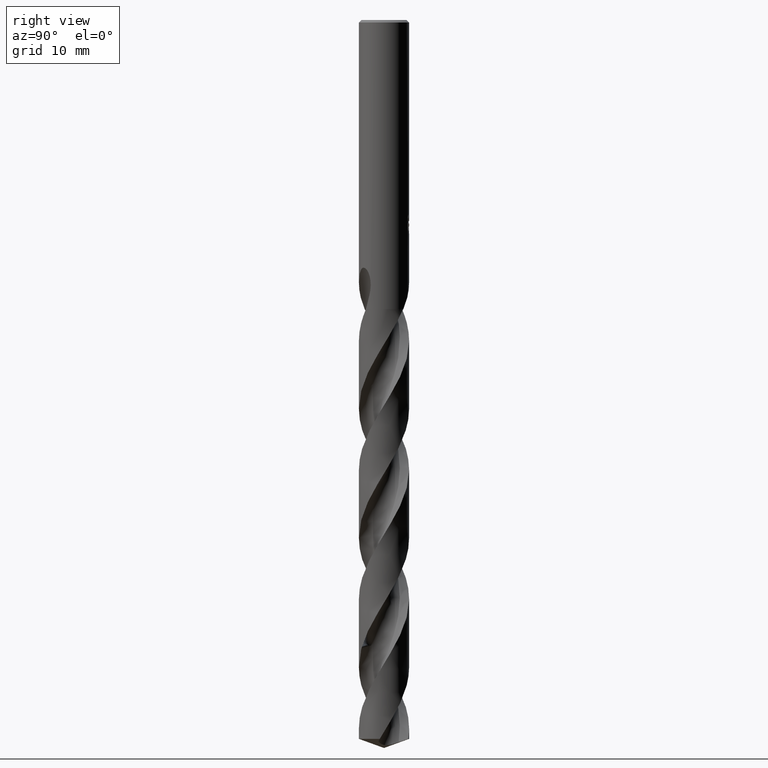
[diagram: clean part render]
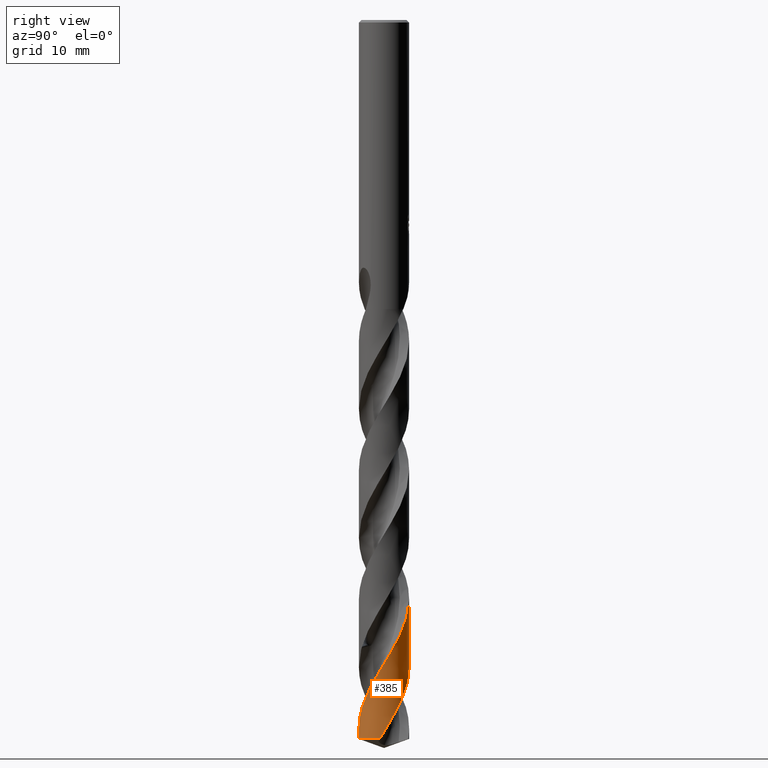
[diagram: same view with one face highlighted and labeled with its STEP entity id]
A machine part, right view. The second image highlights one B-rep face of the part: STEP entity #385.
In plain terms, the highlighted conical surface has half-angle 0 deg.
Its self-contained STEP definition (entity closure, byte-faithful):
#341=EDGE_CURVE('',#641,#435,#849,.T.);
#385=ADVANCED_FACE('',(#898),#899,.T.);
#389=VERTEX_POINT('',#903);
#397=EDGE_CURVE('',#593,#435,#912,.T.);
#435=VERTEX_POINT('',#951);
#443=VERTEX_POINT('',#960);
#501=EDGE_CURVE('',#389,#443,#1024,.T.);
#593=VERTEX_POINT('',#1126);
#595=EDGE_CURVE('',#389,#641,#1128,.T.);
#641=VERTEX_POINT('',#1177);
#741=EDGE_CURVE('',#593,#443,#1283,.T.);
#849=LINE('',#2290,#2291);
#898=FACE_OUTER_BOUND('',#3539,.T.);
#899=CONICAL_SURFACE('',#3540,3.99995,1.45993672879858E-006);
#903=CARTESIAN_POINT('',(3.94181423967638,-0.679779743655648,-114.544119062935));
#912=B_SPLINE_CURVE_WITH_KNOTS('',3,(#3574,#3575,#3576,#3577,#3578,#3579,#3580,#3581,#3582,#3583,#3584,#3585,#3586,#3587,#3588,#3589,#3590,#3591,#3592,#3593,#3594,#3595,#3596,#3597,#3598,#3599,#3600,#3601,#3602,#3603,#3604,#3605,#3606,#3607,#3608,#3609,#3610,#3611,#3612,#3613,#3614,#3615,#3616,#3617,#3618,#3619,#3620,#3621,#3622,#3623,#3624,#3625,#3626,#3627,#3628,#3629,#3630,#3631,#3632,#3633,#3634,#3635,#3636,#3637,#3638,#3639,#3640,#3641,#3642,#3643,#3644,#3645,#3646,#3647,#3648,#3649,#3650,#3651,#3652,#3653,#3654,#3655,#3656,#3657,#3658,#3659,#3660,#3661,#3662,#3663,#3664,#3665,#3666,#3667,#3668,#3669,#3670,#3671,#3672,#3673,#3674,#3675,#3676,#3677,#3678,#3679,#3680,#3681,#3682,#3683,#3684,#3685,#3686,#3687,#3688,#3689,#3690,#3691,#3692,#3693,#3694,#3695,#3696,#3697,#3698,#3699,#3700,#3701,#3702,#3703,#3704,#3705,#3706,#3707,#3708,#3709,#3710,#3711,#3712,#3713,#3714,#3715,#3716,#3717,#3718,#3719,#3720,#3721,#3722,#3723,#3724,#3725),.UNSPECIFIED.,.F.,.F.,(4,2,2,2,2,2,2,2,2,2,2,2,2,2,2,2,2,2,2,2,2,2,2,2,2,2,2,2,2,2,2,2,2,2,2,2,2,2,2,2,2,2,2,2,2,2,2,2,2,2,2,2,2,2,2,2,2,2,2,2,2,2,2,2,2,2,2,2,2,2,2,2,2,2,2,4),(0.0,0.201648680910562,0.287811426977105,0.331356370680635,0.849612833416693,0.96709928681127,1.03060420960451,1.08348108881563,1.14564423244048,1.25699827106449,1.36462092048607,2.11389655309662,2.65642042289018,3.50122269746394,4.08085451110219,4.58037232287383,5.54840416916192,7.32737871171083,8.04855335640123,9.820875352631,10.4871042300679,12.0575058231776,12.9970904189812,14.5928599305681,16.0570722308306,17.4439627946134,17.7710679249299,18.9897692042285,19.6937376999375,20.5177067146236,22.0771109471635,23.0283218299482,24.5869743429684,25.5369896427948,27.0799562072001,28.0594547469285,29.630551078119,30.5597004391673,32.116324866356,33.0696758518333,34.6150948330812,35.5881084861239,37.1500985002429,38.0937637818032,39.6554546501379,40.5991864032354,42.1473767359173,43.113828686456,44.6658956189253,45.625896068901,47.192044121099,48.1272377215903,49.6795036474803,50.6374337485932,52.1817309570522,53.1546335465592,54.722487803201,55.6536234927395,57.2089526434822,58.1607260021944,59.7039563507098,60.6772383545002,62.2387695626353,63.1795197588421,64.7396931253117,65.6824596933156,67.2261387534484,68.1962181152585,69.7544550357678,70.7037875373406,72.2579854138225,73.8280820020411,75.0296064375587,75.4798729600722,77.061151090249,78.6534008869028),.UNSPECIFIED.);
#951=CARTESIAN_POINT('',(-1.63623774489834E-013,-3.99999755054086,-112.866334606679));
#960=CARTESIAN_POINT('',(2.64188243777976E-015,3.99998333402808,-103.128575092219));
#1024=B_SPLINE_CURVE_WITH_KNOTS('',3,(#5053,#5054,#5055,#5056,#5057,#5058,#5059,#5060,#5061,#5062,#5063,#5064,#5065,#5066,#5067,#5068,#5069,#5070,#5071,#5072,#5073,#5074,#5075,#5076,#5077,#5078,#5079,#5080,#5081,#5082,#5083,#5084,#5085,#5086,#5087,#5088,#5089,#5090,#5091,#5092,#5093,#5094,#5095,#5096,#5097,#5098,#5099,#5100,#5101,#5102,#5103,#5104,#5105,#5106,#5107,#5108,#5109,#5110,#5111,#5112,#5113,#5114,#5115,#5116,#5117,#5118,#5119,#5120,#5121,#5122,#5123,#5124,#5125,#5126,#5127,#5128,#5129,#5130,#5131,#5132,#5133,#5134,#5135,#5136,#5137,#5138,#5139,#5140,#5141,#5142,#5143,#5144,#5145,#5146,#5147,#5148,#5149,#5150,#5151,#5152,#5153,#5154,#5155,#5156,#5157,#5158,#5159,#5160,#5161,#5162,#5163,#5164,#5165,#5166,#5167,#5168,#5169,#5170,#5171,#5172,#5173,#5174,#5175,#5176,#5177,#5178,#5179,#5180,#5181,#5182,#5183,#5184,#5185,#5186,#5187,#5188,#5189,#5190,#5191,#5192,#5193,#5194,#5195,#5196,#5197,#5198,#5199,#5200,#5201,#5202,#5203,#5204,#5205,#5206,#5207,#5208,#5209,#5210),.UNSPECIFIED.,.F.,.F.,(4,2,2,2,2,2,2,2,2,2,2,2,2,2,2,2,2,2,2,2,2,2,2,2,2,2,2,2,2,2,2,2,2,2,2,2,2,2,2,2,2,2,2,2,2,2,2,2,2,2,2,2,2,2,2,2,2,2,2,2,2,2,2,2,2,2,2,2,2,2,2,2,2,2,2,2,2,2,4),(0.0,1.79459234819068,2.93895174529985,3.86671599924228,5.12402296856714,7.18297093424794,7.89916034547965,9.04476723867697,11.101163384525,11.1689689721968,13.3625905864738,13.940408593114,16.2332317621778,16.3008722793936,18.4838456647748,19.0613552891118,21.3351480890928,21.4048268683665,23.6265614496789,24.1923470115375,25.3958197471264,26.0328909463757,26.965038806506,28.0345129098138,30.1836953339023,31.456884455771,31.789389907757,32.9663447783547,33.602672463154,34.8508739627384,36.1142480369493,37.3644196665228,38.6269764431657,39.8218549052023,41.082597027151,42.2130796790284,43.5132701236655,44.6454634974151,45.9539708855015,46.5258361267992,47.1036745510522,48.2866950600797,48.9247776163315,50.1737792710916,51.3217094385519,52.4729415475631,53.66102942725,54.2307383452441,55.0274738428318,56.2161586459697,56.7730414217658,57.3336644448961,58.6025667849013,60.8036999796268,61.4415183170011,62.5740494952022,63.792187525432,64.3664802842036,64.9586489454991,66.1862853237352,66.82535028472,68.0742959588995,69.3446292606046,70.5942500741416,71.8812544360416,73.0188729231279,74.6185180079127,75.2510173550977,76.7777357363613,77.8594428186123,78.2649732798924,78.6402931708846,78.7685648583854,78.8644451263404,78.9120610835988,78.9638336052134,79.0469825356917,79.2640382653908,79.599674973296),.UNSPECIFIED.);
#1126=CARTESIAN_POINT('',(1.50763812835549E-014,3.99996749263698,-92.2778369871342));
#1128=CIRCLE('',#6533,4.0);
#1177=CARTESIAN_POINT('',(4.9028818964109E-016,-4.0,-114.544119062935));
#1283=LINE('',#8444,#8445);
#2290=CARTESIAN_POINT('',(4.90282066609321E-016,-3.99995,-80.2960595314676));
#2291=VECTOR('',#8595,1.0);
#3539=EDGE_LOOP('',(#8665,#8666,#8667,#8668,#8669));
#3540=AXIS2_PLACEMENT_3D('',#8670,#8671,#8672);
#3574=CARTESIAN_POINT('',(-2.78023865558487,2.87566915454258,-46.053));
#3575=CARTESIAN_POINT('',(-2.7563098981248,2.89880394297298,-46.1113970658407));
#3576=CARTESIAN_POINT('',(-2.73200109799238,2.9217293967338,-46.1698914532695));
#3577=CARTESIAN_POINT('',(-2.69666250518793,2.95422075666971,-46.2532994963048));
#3578=CARTESIAN_POINT('',(-2.68601086747219,2.96390908766562,-46.2782373603717));
#3579=CARTESIAN_POINT('',(-2.66984126147798,2.97845666332183,-46.3157646953035));
#3580=CARTESIAN_POINT('',(-2.66439255685538,2.98333190030783,-46.3283549860326));
#3581=CARTESIAN_POINT('',(-2.59380153776348,3.04614458586745,-46.4907340967934));
#3582=CARTESIAN_POINT('',(-2.52743035386121,3.10152512151207,-46.6352134834316));
#3583=CARTESIAN_POINT('',(-2.43999618668549,3.16954992059861,-46.8157492137247));
#3584=CARTESIAN_POINT('',(-2.42369959152642,3.1820299270911,-46.8490234498112));
#3585=CARTESIAN_POINT('',(-2.39834205738791,3.20113877471594,-46.9002784548283));
#3586=CARTESIAN_POINT('',(-2.3894050830121,3.20781520369717,-46.9182451955431));
#3587=CARTESIAN_POINT('',(-2.37294831301988,3.22000208465379,-46.9511642012755));
#3588=CARTESIAN_POINT('',(-2.36544509043461,3.22551812518473,-46.9661108725519));
#3589=CARTESIAN_POINT('',(-2.34906074095586,3.23747507744598,-46.9986236219532));
#3590=CARTESIAN_POINT('',(-2.34017338720429,3.2439051170703,-47.0161800986025));
#3591=CARTESIAN_POINT('',(-2.31526710384572,3.26176900253146,-47.0651822084957));
#3592=CARTESIAN_POINT('',(-2.29918799286348,3.27312311197046,-47.0965892018639));
#3593=CARTESIAN_POINT('',(-2.2673788516277,3.29523422914741,-47.1583751695536));
#3594=CARTESIAN_POINT('',(-2.2517426820216,3.30594067312102,-47.1886334216889));
#3595=CARTESIAN_POINT('',(-2.1238042328228,3.3921781816829,-47.4357273501845));
#3596=CARTESIAN_POINT('',(-2.00897775841912,3.46134288275975,-47.653598202311));
#3597=CARTESIAN_POINT('',(-1.80707045691906,3.56973136152623,-48.0284983633305));
#3598=CARTESIAN_POINT('',(-1.72076665857966,3.61211826287962,-48.1862908519146));
#3599=CARTESIAN_POINT('',(-1.49673093547335,3.71232561498695,-48.5895341593796));
#3600=CARTESIAN_POINT('',(-1.3568579854709,3.76571193928374,-48.8353925780195));
#3601=CARTESIAN_POINT('',(-1.11631773582508,3.84234631647531,-49.2492596529461));
#3602=CARTESIAN_POINT('',(-1.01726896546225,3.86975235782883,-49.4171352333163));
#3603=CARTESIAN_POINT('',(-0.830868727397968,3.91366295517378,-49.7302732321554));
#3604=CARTESIAN_POINT('',(-0.743966812218156,3.93110728021812,-49.8751327234005));
#3605=CARTESIAN_POINT('',(-0.487255921888526,3.97382674475737,-50.3010884706935));
#3606=CARTESIAN_POINT('',(-0.316459456438436,3.99104661102733,-50.5823926708425));
#3607=CARTESIAN_POINT('',(0.169346483493759,4.00870233407853,-51.3799491319812));
#3608=CARTESIAN_POINT('',(0.484346035507209,3.9829642039484,-51.8931251164586));
#3609=CARTESIAN_POINT('',(0.918472793372184,3.89512615333973,-52.6186106652792));
#3610=CARTESIAN_POINT('',(1.04235728716406,3.86381494094193,-52.8278281859163));
#3611=CARTESIAN_POINT('',(1.46460774597921,3.73532177230489,-53.5515903109263));
#3612=CARTESIAN_POINT('',(1.75313101196373,3.60894366627663,-54.0642488688803));
#3613=CARTESIAN_POINT('',(2.12587133972294,3.39026734737128,-54.7717523060999));
#3614=CARTESIAN_POINT('',(2.22496890031046,3.32606934483765,-54.9649007108604));
#3615=CARTESIAN_POINT('',(2.5475472957798,3.09623235340965,-55.6140516244887));
#3616=CARTESIAN_POINT('',(2.75667012209348,2.91161863733212,-56.0689228390768));
#3617=CARTESIAN_POINT('',(3.05764419277242,2.58415510708721,-56.797288402399));
#3618=CARTESIAN_POINT('',(3.16250745907308,2.45470204993529,-57.0694872751126));
#3619=CARTESIAN_POINT('',(3.4228321272421,2.08888006104937,-57.8054340957943));
#3620=CARTESIAN_POINT('',(3.56188560707856,1.84181824791076,-58.2676287338591));
#3621=CARTESIAN_POINT('',(3.77638147699009,1.34373844496946,-59.1556645354082));
#3622=CARTESIAN_POINT('',(3.8555460078659,1.09606602081733,-59.5796773918941));
#3623=CARTESIAN_POINT('',(3.96190665471623,0.602484214639576,-60.4073355119459));
#3624=CARTESIAN_POINT('',(3.9914408513891,0.35803833495365,-60.8089018967167));
#3625=CARTESIAN_POINT('',(3.99997273239812,0.0543812987866399,-61.3063032941222));
#3626=CARTESIAN_POINT('',(4.00034064395459,-0.00358383945677545,-61.4011917791007));
#3627=CARTESIAN_POINT('',(3.99612813143612,-0.277430632549005,-61.8498932921036));
#3628=CARTESIAN_POINT('',(3.9753293966394,-0.492709503656422,-62.2034940190717));
#3629=CARTESIAN_POINT('',(3.91527265742587,-0.828003620184909,-62.7616493682142));
#3630=CARTESIAN_POINT('',(3.88754845324938,-0.949702369442257,-62.9658578306068));
#3631=CARTESIAN_POINT('',(3.81510516315301,-1.21066344251704,-63.4093382117413));
#3632=CARTESIAN_POINT('',(3.76837571159685,-1.34909368868872,-63.6481800149148));
#3633=CARTESIAN_POINT('',(3.61167489028104,-1.74112687508385,-64.3401696870321));
#3634=CARTESIAN_POINT('',(3.48281258950805,-1.98641506176009,-64.7920272569123));
#3635=CARTESIAN_POINT('',(3.23620183428423,-2.35687410121811,-65.5208184078097));
#3636=CARTESIAN_POINT('',(3.13401867182713,-2.49113533979436,-65.7964496666228));
#3637=CARTESIAN_POINT('',(2.842935230474,-2.82726126885647,-66.5252354850146));
#3638=CARTESIAN_POINT('',(2.64097022426503,-3.01679847947039,-66.9769183129012));
#3639=CARTESIAN_POINT('',(2.28694766009582,-3.28598364167706,-67.7052151490317));
#3640=CARTESIAN_POINT('',(2.14662525228815,-3.37931770215702,-67.98052462259));
#3641=CARTESIAN_POINT('',(1.76416110312728,-3.60026886922332,-68.7044833234876));
#3642=CARTESIAN_POINT('',(1.51395999262016,-3.71244263392974,-69.1517037254616));
#3643=CARTESIAN_POINT('',(1.08929271784916,-3.8526714991327,-69.884088478964));
#3644=CARTESIAN_POINT('',(0.921076598277679,-3.89630885716205,-70.1679491572039));
#3645=CARTESIAN_POINT('',(0.477158470432418,-3.98111911888515,-70.9087172826476));
#3646=CARTESIAN_POINT('',(0.19890375157831,-4.00468985451695,-71.3640727995492));
#3647=CARTESIAN_POINT('',(-0.244344120451431,-3.99586585618107,-72.0900715011371));
#3648=CARTESIAN_POINT('',(-0.408647676526806,-3.98241467304618,-72.3594115710581));
#3649=CARTESIAN_POINT('',(-0.844639585381252,-3.91946370759086,-73.0814214499844));
#3650=CARTESIAN_POINT('',(-1.11295692649598,-3.85188888109846,-73.5326579068643));
#3651=CARTESIAN_POINT('',(-1.53105006171143,-3.69918873213707,-74.2615561325932));
#3652=CARTESIAN_POINT('',(-1.68595986612159,-3.63120102449577,-74.537913429033));
#3653=CARTESIAN_POINT('',(-2.07940845956725,-3.42791792170651,-75.2637722556805));
#3654=CARTESIAN_POINT('',(-2.30927882057937,-3.27748348007225,-75.7118314118828));
#3655=CARTESIAN_POINT('',(-2.65595591354371,-2.99586909436845,-76.4432648901595));
#3656=CARTESIAN_POINT('',(-2.78266937248855,-2.87855056335917,-76.7253354598028));
#3657=CARTESIAN_POINT('',(-3.09197168850174,-2.55263172243944,-77.4617981035233));
#3658=CARTESIAN_POINT('',(-3.261261494483,-2.33248841215191,-77.9146718274808));
#3659=CARTESIAN_POINT('',(-3.49420593718451,-1.95400123575484,-78.6424650202616));
#3660=CARTESIAN_POINT('',(-3.57287262016469,-1.8061417221317,-78.9160834014604));
#3661=CARTESIAN_POINT('',(-3.75649924298332,-1.40176460985067,-79.6440036813032));
#3662=CARTESIAN_POINT('',(-3.84452672727117,-1.13840059847197,-80.0968347039554));
#3663=CARTESIAN_POINT('',(-3.94096850489807,-0.704555743089847,-80.8246309978312));
#3664=CARTESIAN_POINT('',(-3.9669888320514,-0.539074970066219,-81.0982926052567));
#3665=CARTESIAN_POINT('',(-4.00813051672796,-0.0992114118301566,-81.8223808159747));
#3666=CARTESIAN_POINT('',(-4.00550333292162,0.176076749706119,-82.271371258027));
#3667=CARTESIAN_POINT('',(-3.95542789453375,0.61936925869235,-83.001923061132));
#3668=CARTESIAN_POINT('',(-3.92525583219711,0.788266323590574,-83.2821800246217));
#3669=CARTESIAN_POINT('',(-3.81868138789056,1.2219012816577,-84.0140743645262));
#3670=CARTESIAN_POINT('',(-3.72557561784181,1.48174379654734,-84.464228764843));
#3671=CARTESIAN_POINT('',(-3.53280718335573,1.88359802333004,-85.1941085784598));
#3672=CARTESIAN_POINT('',(-3.44943228290417,2.03225360912674,-85.4725330231451));
#3673=CARTESIAN_POINT('',(-3.20585234414703,2.40817406532156,-86.2067190502068));
#3674=CARTESIAN_POINT('',(-3.03091850479692,2.62496424514471,-86.660970093546));
#3675=CARTESIAN_POINT('',(-2.71779105830066,2.93952921424918,-87.3878012441066));
#3676=CARTESIAN_POINT('',(-2.59355621350046,3.04969795701198,-87.6590781777436));
#3677=CARTESIAN_POINT('',(-2.24596556137864,3.32131179154725,-88.3820886169169));
#3678=CARTESIAN_POINT('',(-2.01205539156135,3.46802748901067,-88.8323868692644));
#3679=CARTESIAN_POINT('',(-1.61229821614749,3.66457378899717,-89.5618659779577));
#3680=CARTESIAN_POINT('',(-1.45517245499964,3.72975190167012,-89.8397420900311));
#3681=CARTESIAN_POINT('',(-1.03526385187551,3.8733662180837,-90.567121199999));
#3682=CARTESIAN_POINT('',(-0.767593455042676,3.93518019463891,-91.0151736387169));
#3683=CARTESIAN_POINT('',(-0.324293207474726,3.99053650250885,-91.7467681668912));
#3684=CARTESIAN_POINT('',(-0.151810936285319,4.00080866002715,-92.0290076304816));
#3685=CARTESIAN_POINT('',(0.298846252479703,3.99847145304417,-92.767664637176));
#3686=CARTESIAN_POINT('',(0.576137884140066,3.96802993226208,-93.2225441163212));
#3687=CARTESIAN_POINT('',(1.00961758946045,3.87398339671767,-93.9489126072119));
#3688=CARTESIAN_POINT('',(1.16875076918648,3.82897742226586,-94.2190988344344));
#3689=CARTESIAN_POINT('',(1.58494840464051,3.68291108768851,-94.9420399935339));
#3690=CARTESIAN_POINT('',(1.83523440446054,3.56481690724849,-95.3933563166185));
#3691=CARTESIAN_POINT('',(2.21595978502333,3.33434442480025,-96.1221566053869));
#3692=CARTESIAN_POINT('',(2.35475577989213,3.23781187289327,-96.3983360749056));
#3693=CARTESIAN_POINT('',(2.70144044007084,2.96259615140057,-97.1238341026739));
#3694=CARTESIAN_POINT('',(2.8979099381966,2.77073636518056,-97.5717129320821));
#3695=CARTESIAN_POINT('',(3.18386488903062,2.42748229399727,-98.303328425222));
#3696=CARTESIAN_POINT('',(3.28570412103867,2.28774627526235,-98.5857612704792));
#3697=CARTESIAN_POINT('',(3.52653503251809,1.90791373085207,-99.322913726277));
#3698=CARTESIAN_POINT('',(3.65023859114353,1.65905209325348,-99.7761099297907));
#3699=CARTESIAN_POINT('',(3.80566353028948,1.24284368247267,-100.503658067244));
#3700=CARTESIAN_POINT('',(3.85421844644047,1.08291566850439,-100.77670890602));
#3701=CARTESIAN_POINT('',(3.95634137935964,0.651042341642758,-101.504076059112));
#3702=CARTESIAN_POINT('',(3.9919298617047,0.375633072926757,-101.956924425361));
#3703=CARTESIAN_POINT('',(4.00289518323126,-0.0686789291458742,-102.684734927086));
#3704=CARTESIAN_POINT('',(3.99651447230723,-0.236070588553742,-102.958392913448));
#3705=CARTESIAN_POINT('',(3.95210996101869,-0.675092280563785,-103.681621017699));
#3706=CARTESIAN_POINT('',(3.89660241769627,-0.944202701183427,-104.129762460345));
#3707=CARTESIAN_POINT('',(3.76205612713303,-1.36985347960813,-104.860796843208));
#3708=CARTESIAN_POINT('',(3.69959519014349,-1.5305322988556,-105.142385698848));
#3709=CARTESIAN_POINT('',(3.51038122430003,-1.93742314150357,-105.877870403248));
#3710=CARTESIAN_POINT('',(3.36802744829866,-2.1755193654895,-106.330256611922));
#3711=CARTESIAN_POINT('',(3.101142479855,-2.53204568712174,-107.05956701124));
#3712=CARTESIAN_POINT('',(2.99170596101547,-2.66045219573831,-107.335189630709));
#3713=CARTESIAN_POINT('',(2.68269122380472,-2.97979813893906,-108.063537297867));
#3714=CARTESIAN_POINT('',(2.47078190866998,-3.15774937454881,-108.514788987584));
#3715=CARTESIAN_POINT('',(2.01120189248781,-3.46883109589595,-109.423543577336));
#3716=CARTESIAN_POINT('',(1.76461019074902,-3.60052181877393,-109.87906526758));
#3717=CARTESIAN_POINT('',(1.30889535179805,-3.78579283038933,-110.685491110008));
#3718=CARTESIAN_POINT('',(1.10515883991553,-3.85021179677951,-111.034426987278));
#3719=CARTESIAN_POINT('',(0.81923658623124,-3.91601998735808,-111.514887268757));
#3720=CARTESIAN_POINT('',(0.740789073508896,-3.93161427848494,-111.645785572076));
#3721=CARTESIAN_POINT('',(0.385006999621851,-3.9913144154807,-112.23679305637));
#3722=CARTESIAN_POINT('',(0.103861879694929,-4.0085068877115,-112.695986263862));
#3723=CARTESIAN_POINT('',(-0.459448654496336,-3.98358276819162,-113.619109307535));
#3724=CARTESIAN_POINT('',(-0.739664525891767,-3.94114354392843,-114.080578198535));
#3725=CARTESIAN_POINT('',(-1.01281366550972,-3.86965224263844,-114.544119062935));
#5053=CARTESIAN_POINT('',(3.94181423967638,-0.679779743655652,-114.544119062935));
#5054=CARTESIAN_POINT('',(3.99491232437438,-0.371877416091599,-114.034004430184));
#5055=CARTESIAN_POINT('',(4.01165782553826,-0.0596955931241228,-113.519776261688));
#5056=CARTESIAN_POINT('',(3.97964292078451,0.449279973431634,-112.684287661054));
#5057=CARTESIAN_POINT('',(3.95243796687407,0.646250428089284,-112.36040898246));
#5058=CARTESIAN_POINT('',(3.87689420607107,0.997785617609038,-111.771409599821));
#5059=CARTESIAN_POINT('',(3.83364095526282,1.15284357151572,-111.506905315154));
#5060=CARTESIAN_POINT('',(3.7100180566079,1.51104801511944,-110.8858427353));
#5061=CARTESIAN_POINT('',(3.62211024847332,1.71112182551983,-110.530225338584));
#5062=CARTESIAN_POINT('',(3.34812059229509,2.21762480117036,-109.588259827951));
#5063=CARTESIAN_POINT('',(3.13667782124353,2.50780279230752,-109.002088103115));
#5064=CARTESIAN_POINT('',(2.80335398730545,2.85597726396817,-108.21403182735));
#5065=CARTESIAN_POINT('',(2.71322529573082,2.94173042161865,-108.010956775041));
#5066=CARTESIAN_POINT('',(2.46904866991539,3.15328982114357,-107.482092407733));
#5067=CARTESIAN_POINT('',(2.30950361258381,3.27192796712575,-107.155453190706));
#5068=CARTESIAN_POINT('',(1.84090976515665,3.56902296009494,-106.245949920514));
#5069=CARTESIAN_POINT('',(1.51621142221039,3.71849896049835,-105.669191148394));
#5070=CARTESIAN_POINT('',(1.16543791779304,3.82645802261175,-105.065400788875));
#5071=CARTESIAN_POINT('',(1.15420759252213,3.82986064414,-105.046096189854));
#5072=CARTESIAN_POINT('',(0.777862319118534,3.94207165314907,-104.400277043957));
#5073=CARTESIAN_POINT('',(0.399018588265942,3.99826429480704,-103.783169873865));
#5074=CARTESIAN_POINT('',(-0.0828289236899038,4.00038710122213,-102.992697781552));
#5075=CARTESIAN_POINT('',(-0.183123341430797,3.99704842463045,-102.827538464274));
#5076=CARTESIAN_POINT('',(-0.680343700907001,3.96175449203455,-102.009108724131));
#5077=CARTESIAN_POINT('',(-1.07058921531601,3.87448043891502,-101.365970854661));
#5078=CARTESIAN_POINT('',(-1.4522153361225,3.72706939525286,-100.692962701962));
#5079=CARTESIAN_POINT('',(-1.46315133915828,3.72278995122696,-100.673644557095));
#5080=CARTESIAN_POINT('',(-1.82764427657428,3.57829281930187,-100.028896364382));
#5081=CARTESIAN_POINT('',(-2.15950290226846,3.3884126485367,-99.4128099085912));
#5082=CARTESIAN_POINT('',(-2.53918179758297,3.09233179764897,-98.6229824371096));
#5083=CARTESIAN_POINT('',(-2.61613051238113,3.02750600439043,-98.4573896820449));
#5084=CARTESIAN_POINT('',(-2.98364153158335,2.69342799298383,-97.6419298548543));
#5085=CARTESIAN_POINT('',(-3.23520404071013,2.38527647806268,-97.0020404450288));
#5086=CARTESIAN_POINT('',(-3.4435711146079,2.03512948974299,-96.331797941211));
#5087=CARTESIAN_POINT('',(-3.4497162114514,2.02469566845529,-96.3118731117626));
#5088=CARTESIAN_POINT('',(-3.65078459281493,1.67971490815391,-95.6551625369483));
#5089=CARTESIAN_POINT('',(-3.79621451022215,1.31861663375358,-95.0282131940464));
#5090=CARTESIAN_POINT('',(-3.91072651578637,0.846004134697447,-94.2303307329246));
#5091=CARTESIAN_POINT('',(-3.93038334212618,0.749383068713287,-94.068048379166));
#5092=CARTESIAN_POINT('',(-3.98066055613964,0.445092891450589,-93.5617390529313));
#5093=CARTESIAN_POINT('',(-3.99857110911158,0.235464591524047,-93.2189796179031));
#5094=CARTESIAN_POINT('',(-4.00058777039053,-0.0862898462809876,-92.6929276453125));
#5095=CARTESIAN_POINT('',(-3.9966335224198,-0.197538999820748,-92.511027888552));
#5096=CARTESIAN_POINT('',(-3.97552210576767,-0.470552404005228,-92.0622205551799));
#5097=CARTESIAN_POINT('',(-3.95312653086275,-0.631645700329325,-91.794729393526));
#5098=CARTESIAN_POINT('',(-3.88405706853094,-0.973985376511071,-91.2222404030772));
#5099=CARTESIAN_POINT('',(-3.83436997200703,-1.15424029911236,-90.9175131159011));
#5100=CARTESIAN_POINT('',(-3.64724516532817,-1.68475974742061,-89.9976372732502));
#5101=CARTESIAN_POINT('',(-3.4730729791174,-2.01954706464899,-89.38219830516));
#5102=CARTESIAN_POINT('',(-3.12535884432511,-2.5062612011567,-88.4041586881109));
#5103=CARTESIAN_POINT('',(-2.98135883042315,-2.67588069319673,-88.0420022321244));
#5104=CARTESIAN_POINT('',(-2.78337794628524,-2.87329851935584,-87.5824989818935));
#5105=CARTESIAN_POINT('',(-2.74151327282639,-2.91327240188925,-87.4872446308633));
#5106=CARTESIAN_POINT('',(-2.5470775812444,-3.09099691858825,-87.0546317673955));
#5107=CARTESIAN_POINT('',(-2.38479857472801,-3.2178979788239,-86.7188601242361));
#5108=CARTESIAN_POINT('',(-2.12036530410712,-3.39354245321624,-86.1998799282596));
#5109=CARTESIAN_POINT('',(-2.02510347296858,-3.45123107765121,-86.0179493110901));
#5110=CARTESIAN_POINT('',(-1.73645057630423,-3.60998739532588,-85.4782782720123));
#5111=CARTESIAN_POINT('',(-1.53704074489124,-3.69930206918137,-85.1194503114539));
#5112=CARTESIAN_POINT('',(-1.12274196062598,-3.8455088329468,-84.4001846949443));
#5113=CARTESIAN_POINT('',(-0.908659699151024,-3.90163786317962,-84.0402007799416));
#5114=CARTESIAN_POINT('',(-0.475777469675486,-3.97756876986205,-83.3203451534743));
#5115=CARTESIAN_POINT('',(-0.257867043681606,-3.99761772364259,-82.9609192689266));
#5116=CARTESIAN_POINT('',(0.1815960063971,-4.00192570813613,-82.241284615338));
#5117=CARTESIAN_POINT('',(0.402180925452369,-3.98580175576598,-81.8815224433005));
#5118=CARTESIAN_POINT('',(0.826719672617962,-3.91915877727836,-81.1777730691707));
#5119=CARTESIAN_POINT('',(1.03009173014891,-3.8706782347993,-80.8342781214517));
#5120=CARTESIAN_POINT('',(1.43861314279462,-3.7387920195138,-80.1310485734668));
#5121=CARTESIAN_POINT('',(1.64243573115515,-3.65385009459795,-79.7718415700644));
#5122=CARTESIAN_POINT('',(2.01387693972846,-3.46164400049949,-79.0872796715143));
#5123=CARTESIAN_POINT('',(2.18227620059514,-3.358006671423,-78.7624541085497));
#5124=CARTESIAN_POINT('',(2.52628224901094,-3.1095019177618,-78.0666688358281));
#5125=CARTESIAN_POINT('',(2.69876153135143,-2.96106939217013,-77.696520188149));
#5126=CARTESIAN_POINT('',(2.99631442342839,-2.65722527080665,-77.0007458481));
#5127=CARTESIAN_POINT('',(3.12394097899171,-2.50588970578196,-76.6758384791052));
#5128=CARTESIAN_POINT('',(3.37342268400742,-2.16138189276373,-75.9779019459532));
#5129=CARTESIAN_POINT('',(3.49127164009739,-1.96540065218231,-75.605803982911));
#5130=CARTESIAN_POINT('',(3.63579450989933,-1.67048304794255,-75.0686539776177));
#5131=CARTESIAN_POINT('',(3.67632411608309,-1.57927533754887,-74.9054067737826));
#5132=CARTESIAN_POINT('',(3.75079822868913,-1.39326486479392,-74.576710776522));
#5133=CARTESIAN_POINT('',(3.78463350933966,-1.29853561174922,-74.4111526354267));
#5134=CARTESIAN_POINT('',(3.87677526095335,-1.00624705084061,-73.9079492102077));
#5135=CARTESIAN_POINT('',(3.92351440641012,-0.805112216287111,-73.5714315531295));
#5136=CARTESIAN_POINT('',(3.97127492998819,-0.490813910849165,-73.0516859089024));
#5137=CARTESIAN_POINT('',(3.98338828600393,-0.380128468581446,-72.8697651084437));
#5138=CARTESIAN_POINT('',(4.00551955248191,-0.0519920713185538,-72.3308595697327));
#5139=CARTESIAN_POINT('',(4.00242687999356,0.166045335887066,-71.9727962471647));
#5140=CARTESIAN_POINT('',(3.96238578104198,0.582329856811929,-71.2882345724568));
#5141=CARTESIAN_POINT('',(3.92826562667165,0.77994869528072,-70.9617475205273));
#5142=CARTESIAN_POINT('',(3.83058454528851,1.16894661725471,-70.305130370091));
#5143=CARTESIAN_POINT('',(3.76714632660788,1.35953017139583,-69.9751064306908));
#5144=CARTESIAN_POINT('',(3.60975588019792,1.73550735758542,-69.3070536194104));
#5145=CARTESIAN_POINT('',(3.51507093891211,1.92008087877074,-68.9693167538362));
#5146=CARTESIAN_POINT('',(3.35432072048219,2.18125513518394,-68.4676572739204));
#5147=CARTESIAN_POINT('',(3.29914590609321,2.26383056386838,-68.3051728313652));
#5148=CARTESIAN_POINT('',(3.15976230576734,2.45653984780021,-67.9148540937996));
#5149=CARTESIAN_POINT('',(3.07263705158751,2.5646948226797,-67.6864245859508));
#5150=CARTESIAN_POINT('',(2.84167305733242,2.82264270598099,-67.1189104389481));
#5151=CARTESIAN_POINT('',(2.69151266096574,2.96619125788285,-66.7806950184666));
#5152=CARTESIAN_POINT('',(2.45545625778187,3.15905492414521,-66.2820681182802));
#5153=CARTESIAN_POINT('',(2.37801562090761,3.21774608498046,-66.1230909078959));
#5154=CARTESIAN_POINT('',(2.21867482465385,3.32963261164407,-65.8035973457313));
#5155=CARTESIAN_POINT('',(2.13681773499913,3.38274580395802,-65.6429897982722));
#5156=CARTESIAN_POINT('',(1.86340086079377,3.54626322029991,-65.1200006270234));
#5157=CARTESIAN_POINT('',(1.66445579063964,3.6439123743166,-64.7591732477742));
#5158=CARTESIAN_POINT('',(1.10023597357448,3.86479109005356,-63.7684489639015));
#5159=CARTESIAN_POINT('',(0.724102184571153,3.95256826448343,-63.138966795357));
#5160=CARTESIAN_POINT('',(0.230193900039808,3.99484722353718,-62.3284784337309));
#5161=CARTESIAN_POINT('',(0.118918378474644,3.99970407769231,-62.1466034102322));
#5162=CARTESIAN_POINT('',(-0.189991169308415,4.0002922110289,-61.6410645221383));
#5163=CARTESIAN_POINT('',(-0.387096527343054,3.98602568838178,-61.3165105896306));
#5164=CARTESIAN_POINT('',(-0.791931664370103,3.92647153143837,-60.6453707537491));
#5165=CARTESIAN_POINT('',(-0.999125729077528,3.8789503755274,-60.2992600563107));
#5166=CARTESIAN_POINT('',(-1.2973144225771,3.78501905807008,-59.7879670629696));
#5167=CARTESIAN_POINT('',(-1.3915892297771,3.75137698831908,-59.6242659519689));
#5168=CARTESIAN_POINT('',(-1.58011543225239,3.67603222251128,-59.2912699490515));
#5169=CARTESIAN_POINT('',(-1.67416630970273,3.63415826880876,-59.1218425076481));
#5170=CARTESIAN_POINT('',(-1.95785524477465,3.49451687555703,-58.6026320901292));
#5171=CARTESIAN_POINT('',(-2.14166274129443,3.38502583903368,-58.2540964946359));
#5172=CARTESIAN_POINT('',(-2.40690610587991,3.19664578767837,-57.7222138940511));
#5173=CARTESIAN_POINT('',(-2.49489905844977,3.12844594937106,-57.5403094701419));
#5174=CARTESIAN_POINT('',(-2.74591128325379,2.91659244886655,-57.0020022559195));
#5175=CARTESIAN_POINT('',(-2.90033791198039,2.76309784797305,-56.6445531564159));
#5176=CARTESIAN_POINT('',(-3.18537430259756,2.42933886546909,-55.9261622405872));
#5177=CARTESIAN_POINT('',(-3.31481920458159,2.24948138465641,-55.5656853652446));
#5178=CARTESIAN_POINT('',(-3.54068749073357,1.87353557293324,-54.8469085406207));
#5179=CARTESIAN_POINT('',(-3.63733401773924,1.67825266839321,-54.489008118232));
#5180=CARTESIAN_POINT('',(-3.80045048910763,1.2673510991072,-53.7654099829976));
#5181=CARTESIAN_POINT('',(-3.86550638339324,1.05233732383236,-53.4002289140813));
#5182=CARTESIAN_POINT('',(-3.95347417083322,0.639214536493251,-52.7085631158321));
#5183=CARTESIAN_POINT('',(-3.98025836212407,0.442767370197801,-52.3829322146593));
#5184=CARTESIAN_POINT('',(-4.00945644611499,-0.0328830984788369,-51.602047648727));
#5185=CARTESIAN_POINT('',(-3.9974208121005,-0.311280296683252,-51.1504775909964));
#5186=CARTESIAN_POINT('',(-3.9407093750142,-0.694335258289647,-50.5140388416891));
#5187=CARTESIAN_POINT('',(-3.92028712690733,-0.801612431750723,-50.3334186880156));
#5188=CARTESIAN_POINT('',(-3.83543224953186,-1.16555699065872,-49.7186022402893));
#5189=CARTESIAN_POINT('',(-3.75063420263316,-1.41484164840951,-49.2964296434853));
#5190=CARTESIAN_POINT('',(-3.56383476632274,-1.82574600773229,-48.5630582678299));
#5191=CARTESIAN_POINT('',(-3.47538183212665,-1.9884961599889,-48.260608970598));
#5192=CARTESIAN_POINT('',(-3.34126738688735,-2.19995799572826,-47.8387064338439));
#5193=CARTESIAN_POINT('',(-3.30357242957591,-2.25612985071884,-47.7234738211023));
#5194=CARTESIAN_POINT('',(-3.22900641153151,-2.3614790246,-47.5005278743426));
#5195=CARTESIAN_POINT('',(-3.19236920981003,-2.41074473177135,-47.3931496735521));
#5196=CARTESIAN_POINT('',(-3.14223006368157,-2.47508301269016,-47.2483934182133));
#5197=CARTESIAN_POINT('',(-3.12938055540913,-2.49130811176427,-47.2114835695093));
#5198=CARTESIAN_POINT('',(-3.10679327000492,-2.51938206193333,-47.146897544031));
#5199=CARTESIAN_POINT('',(-3.09455313026265,-2.53450414688791,-47.1117412085039));
#5200=CARTESIAN_POINT('',(-3.0682274418145,-2.56619930911667,-47.0407438390973));
#5201=CARTESIAN_POINT('',(-3.05932952874419,-2.57680239875629,-47.0172893004803));
#5202=CARTESIAN_POINT('',(-3.04040495695917,-2.59911151901452,-46.9685386584071));
#5203=CARTESIAN_POINT('',(-3.03035148744591,-2.61082841555306,-46.943270620525));
#5204=CARTESIAN_POINT('',(-3.00362281028593,-2.64160762674589,-46.877733676658));
#5205=CARTESIAN_POINT('',(-2.98664031881435,-2.66080299067473,-46.8376866497935));
#5206=CARTESIAN_POINT('',(-2.92338169183767,-2.73088010977943,-46.6942373782657));
#5207=CARTESIAN_POINT('',(-2.87417734953432,-2.78278986364795,-46.5931241664409));
#5208=CARTESIAN_POINT('',(-2.73899095320697,-2.91728339345798,-46.3410040583249));
#5209=CARTESIAN_POINT('',(-2.64857061428727,-3.00017088870762,-46.1947318386936));
#5210=CARTESIAN_POINT('',(-2.54882794458082,-3.08264110420268,-46.053));
#6533=AXIS2_PLACEMENT_3D('',#8934,#8935,#8936);
#8444=CARTESIAN_POINT('',(-4.89390770385043E-016,3.99995,-80.2960595314676));
#8445=VECTOR('',#9056,1.0);
#8595=DIRECTION('',(-1.78784779426477E-022,1.45993672879807E-006,0.999999999998934));
#8665=ORIENTED_EDGE('',*,*,#741,.F.);
#8666=ORIENTED_EDGE('',*,*,#397,.T.);
#8667=ORIENTED_EDGE('',*,*,#341,.F.);
#8668=ORIENTED_EDGE('',*,*,#595,.F.);
#8669=ORIENTED_EDGE('',*,*,#501,.T.);
#8670=CARTESIAN_POINT('',(0.0,0.0,-80.2960595314676));
#8671=DIRECTION('',(0.0,-0.0,-1.0));
#8672=DIRECTION('',(0.0,1.0,0.0));
#8934=CARTESIAN_POINT('',(0.0,0.0,-114.544119062935));
#8935=DIRECTION('',(0.0,0.0,-1.0));
#8936=DIRECTION('',(0.0,1.0,0.0));
#9056=DIRECTION('',(-1.78784779426477E-022,1.45993672879807E-006,-0.999999999998934));